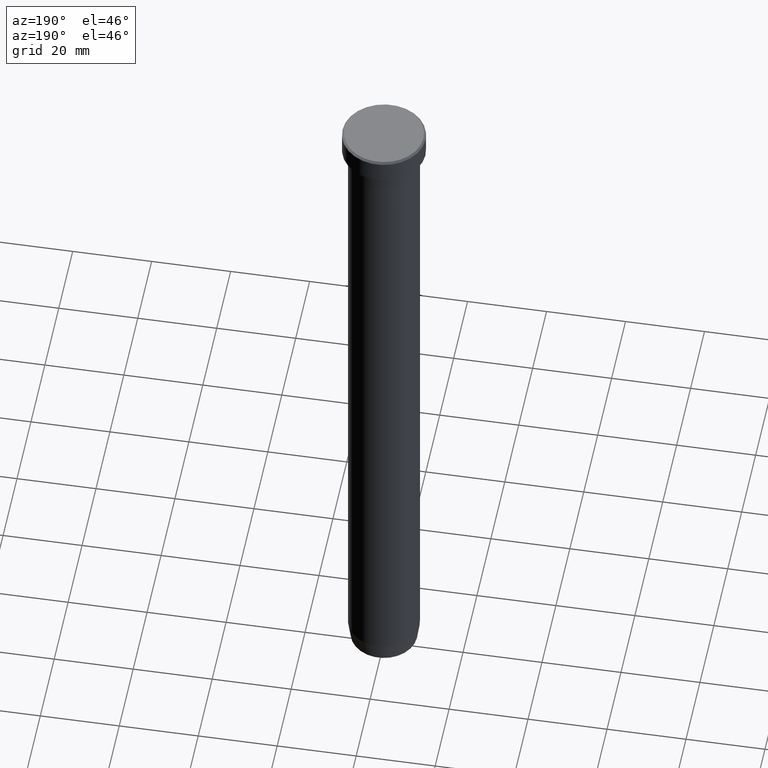
[diagram: clean part render]
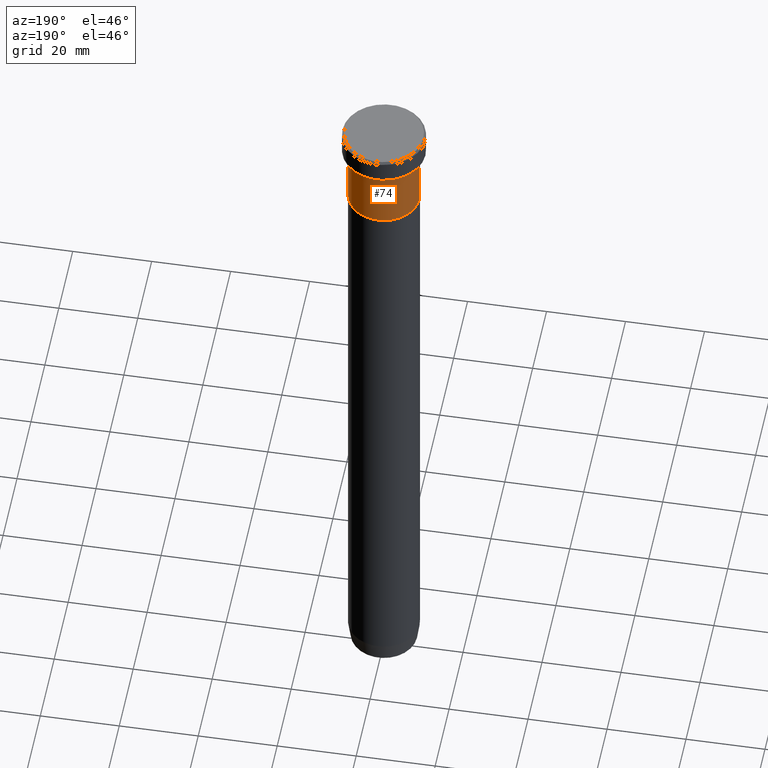
[diagram: same view with one face highlighted and labeled with its STEP entity id]
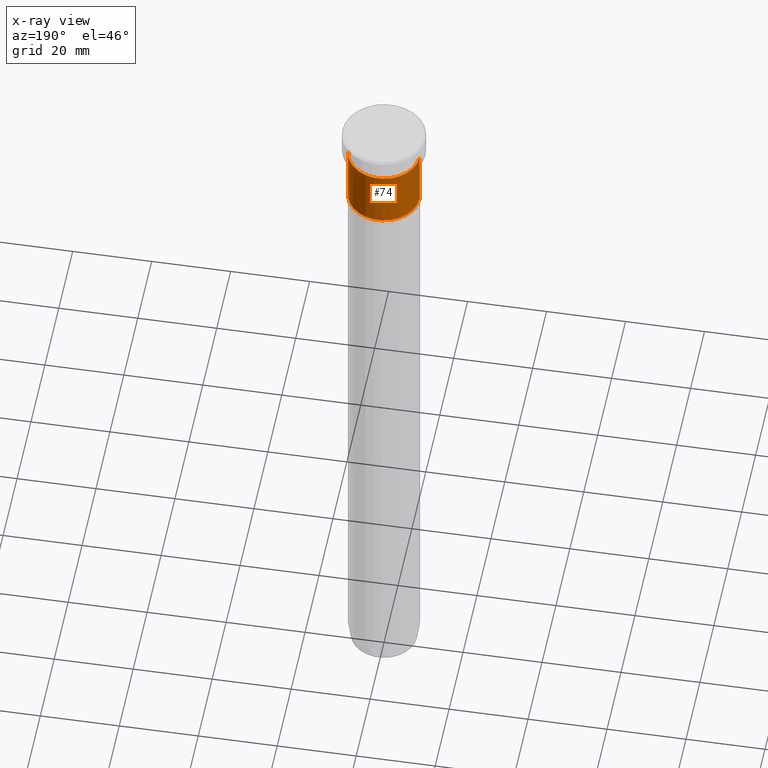
[diagram: x-ray of the same camera — body ghosted, the highlighted face saturated]
A machine part, auxiliary view. The second image highlights one B-rep face of the part: STEP entity #74.
The next image is the same camera in x-ray: the body ghosted, the highlighted face saturated — about 0% of this face is hidden behind the body in this view.
In plain terms, the highlighted cylindrical surface (edge-blend (fillet) strip) has radius 9 mm, axis along (-0, -0, 1).
Its self-contained STEP definition (entity closure, byte-faithful):
#1 = EDGE_CURVE ( 'NONE', #506, #170, #214, .T. ) ;
#10 = ORIENTED_EDGE ( 'NONE', *, *, #1, .T. ) ;
#24 = EDGE_CURVE ( 'NONE', #383, #170, #126, .T. ) ;
#74 = ADVANCED_FACE ( 'NONE', ( #599 ), #244, .T. ) ;
#77 = CARTESIAN_POINT ( 'NONE',  ( 0.000000000000000000, 0.000000000000000000, -22.00000000000000000 ) ) ;
#82 = CARTESIAN_POINT ( 'NONE',  ( 0.000000000000000000, 0.000000000000000000, 0.000000000000000000 ) ) ;
#103 = CARTESIAN_POINT ( 'NONE',  ( 0.000000000000000000, 0.000000000000000000, -7.000000000000000000 ) ) ;
#126 = CIRCLE ( 'NONE', #582, 9.000000000000000000 ) ;
#140 = CARTESIAN_POINT ( 'NONE',  ( 9.000000000000000000, 0.000000000000000000, -22.00000000000000000 ) ) ;
#142 = AXIS2_PLACEMENT_3D ( 'NONE', #77, #533, #490 ) ;
#170 = VERTEX_POINT ( 'NONE', #416 ) ;
#174 = DIRECTION ( 'NONE',  ( -0.000000000000000000, -0.000000000000000000, 1.000000000000000000 ) ) ;
#183 = VERTEX_POINT ( 'NONE', #140 ) ;
#190 = ORIENTED_EDGE ( 'NONE', *, *, #409, .T. ) ;
#214 = LINE ( 'NONE', #573, #461 ) ;
#244 = CYLINDRICAL_SURFACE ( 'NONE', #552, 9.000000000000000000 ) ;
#252 = CARTESIAN_POINT ( 'NONE',  ( 9.000000000000000000, 0.000000000000000000, 0.000000000000000000 ) ) ;
#260 = VECTOR ( 'NONE', #569, 1000.000000000000000 ) ;
#293 = ORIENTED_EDGE ( 'NONE', *, *, #320, .F. ) ;
#320 = EDGE_CURVE ( 'NONE', #183, #383, #381, .T. ) ;
#325 = DIRECTION ( 'NONE',  ( -0.000000000000000000, -0.000000000000000000, 1.000000000000000000 ) ) ;
#381 = LINE ( 'NONE', #252, #260 ) ;
#383 = VERTEX_POINT ( 'NONE', #442 ) ;
#400 = EDGE_LOOP ( 'NONE', ( #190, #10, #514, #293 ) ) ;
#401 = CARTESIAN_POINT ( 'NONE',  ( -9.000000000000000000, 1.102182119232617714E-15, -22.00000000000000000 ) ) ;
#409 = EDGE_CURVE ( 'NONE', #183, #506, #511, .T. ) ;
#416 = CARTESIAN_POINT ( 'NONE',  ( -9.000000000000000000, 1.102182119232617714E-15, -7.000000000000000000 ) ) ;
#419 = DIRECTION ( 'NONE',  ( 1.000000000000000000, 0.000000000000000000, 0.000000000000000000 ) ) ;
#442 = CARTESIAN_POINT ( 'NONE',  ( 9.000000000000000000, 0.000000000000000000, -7.000000000000000000 ) ) ;
#461 = VECTOR ( 'NONE', #174, 1000.000000000000000 ) ;
#490 = DIRECTION ( 'NONE',  ( 1.000000000000000000, 0.000000000000000000, 0.000000000000000000 ) ) ;
#506 = VERTEX_POINT ( 'NONE', #401 ) ;
#511 = CIRCLE ( 'NONE', #142, 9.000000000000000000 ) ;
#514 = ORIENTED_EDGE ( 'NONE', *, *, #24, .F. ) ;
#533 = DIRECTION ( 'NONE',  ( -0.000000000000000000, -0.000000000000000000, 1.000000000000000000 ) ) ;
#552 = AXIS2_PLACEMENT_3D ( 'NONE', #82, #591, #593 ) ;
#569 = DIRECTION ( 'NONE',  ( -0.000000000000000000, -0.000000000000000000, 1.000000000000000000 ) ) ;
#573 = CARTESIAN_POINT ( 'NONE',  ( -9.000000000000000000, 1.102182119232617714E-15, 0.000000000000000000 ) ) ;
#582 = AXIS2_PLACEMENT_3D ( 'NONE', #103, #325, #419 ) ;
#591 = DIRECTION ( 'NONE',  ( -0.000000000000000000, -0.000000000000000000, 1.000000000000000000 ) ) ;
#593 = DIRECTION ( 'NONE',  ( 1.000000000000000000, 0.000000000000000000, 0.000000000000000000 ) ) ;
#599 = FACE_OUTER_BOUND ( 'NONE', #400, .T. ) ;